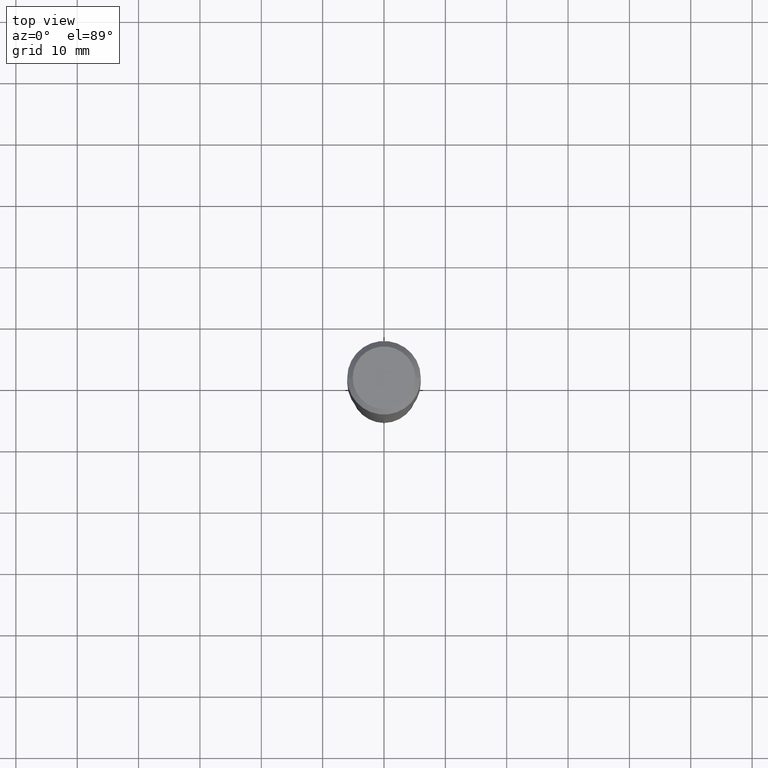
[diagram: clean part render]
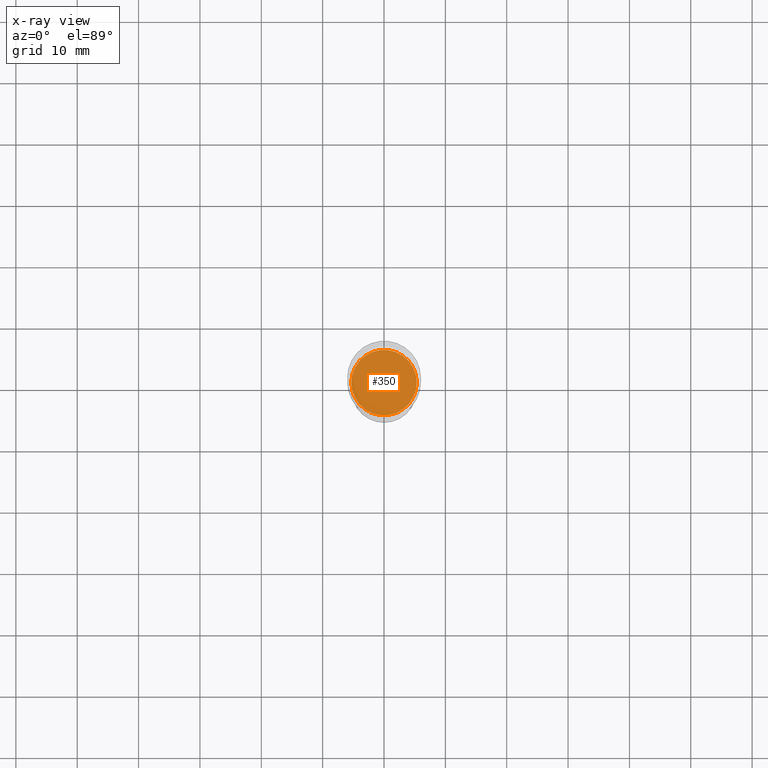
[diagram: x-ray — body ghosted, one internal face saturated and labeled with its STEP entity id]
A machine part, top view, then the same camera in x-ray: the body is ghosted and one INTERNAL B-rep face — a face not visible from any outside direction — is saturated and labeled: STEP entity #350.
In plain terms, the highlighted planar face has unit normal (-0, 0, 1).
Its self-contained STEP definition (entity closure, byte-faithful):
#5 = AXIS2_PLACEMENT_3D ( 'NONE', #359, #38, #223 ) ;
#12 = CIRCLE ( 'NONE', #437, 0.2101500000000000035 ) ;
#38 = DIRECTION ( 'NONE',  ( -2.445468806185136597E-29, 3.491481338843145583E-15, 1.000000000000000000 ) ) ;
#42 = CARTESIAN_POINT ( 'NONE',  ( 0.2101500000000000035, -7.929154120512778443E-15, -1.850700000000000012 ) ) ;
#68 = CARTESIAN_POINT ( 'NONE',  ( -0.2101500000000000035, -4.965829727423048317E-15, -1.850700000000000012 ) ) ;
#84 = EDGE_LOOP ( 'NONE', ( #296, #266 ) ) ;
#149 = CARTESIAN_POINT ( 'NONE',  ( 4.525829119606832626E-29, -6.461684513797009689E-15, -1.850700000000000012 ) ) ;
#161 = CIRCLE ( 'NONE', #5, 0.2101500000000000035 ) ;
#223 = DIRECTION ( 'NONE',  ( 1.000000000000000000, -6.982962677686268288E-15, 0.000000000000000000 ) ) ;
#230 = DIRECTION ( 'NONE',  ( 1.000000000000000000, -6.982962677686268288E-15, 0.000000000000000000 ) ) ;
#265 = CARTESIAN_POINT ( 'NONE',  ( 4.525829119606832626E-29, -6.461684513797009689E-15, -1.850700000000000012 ) ) ;
#266 = ORIENTED_EDGE ( 'NONE', *, *, #420, .F. ) ;
#296 = ORIENTED_EDGE ( 'NONE', *, *, #455, .F. ) ;
#305 = PLANE ( 'NONE',  #328 ) ;
#328 = AXIS2_PLACEMENT_3D ( 'NONE', #265, #405, #362 ) ;
#330 = VERTEX_POINT ( 'NONE', #42 ) ;
#350 = ADVANCED_FACE ( 'NONE', ( #492 ), #305, .F. ) ;
#359 = CARTESIAN_POINT ( 'NONE',  ( 4.525829119606832626E-29, -6.461684513797009689E-15, -1.850700000000000012 ) ) ;
#362 = DIRECTION ( 'NONE',  ( 1.000000000000000000, -6.982962677686265922E-15, 4.876176775795935793E-29 ) ) ;
#376 = VERTEX_POINT ( 'NONE', #68 ) ;
#405 = DIRECTION ( 'NONE',  ( -2.438088387897960049E-29, 3.491481338843145188E-15, 1.000000000000000000 ) ) ;
#420 = EDGE_CURVE ( 'NONE', #376, #330, #12, .T. ) ;
#437 = AXIS2_PLACEMENT_3D ( 'NONE', #149, #440, #230 ) ;
#440 = DIRECTION ( 'NONE',  ( -2.445468806185136597E-29, 3.491481338843145583E-15, 1.000000000000000000 ) ) ;
#455 = EDGE_CURVE ( 'NONE', #330, #376, #161, .T. ) ;
#492 = FACE_OUTER_BOUND ( 'NONE', #84, .T. ) ;